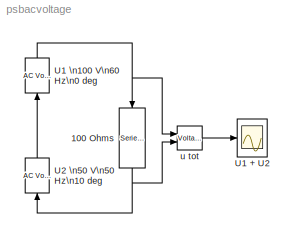
MODEL psbacvoltage
KIND model
BLOCK [Reference] 100 Ohms  REF=powerlib2/Elements/Series RLC Branch
  PSBOutputType = 1
  Ports = [1, 1]
  SourceBlock = powerlib2/Elements/Series RLC Branch
  SourceType = Series RLC Branch
  Tag = PoWeRsYsTeMbLoCk
  a = 100
  b = 0
  c = inf
  mesure = None
BLOCK [Scope] U1 + U2
  DataFormat = Array
  NumInputPorts = 1
  Ports = [1]
  TickLabels = on
  TimeRange = 0.5
  YMax = 180
  YMin = -180
BLOCK [Reference] U1 \n100 V\n60 Hz\n0 deg  REF=powerlib2/Electrical\nSources/AC Voltage Source
  A = 100
  F = 60
  P = 0
  PSBOutputType = 1
  Ports = [1, 1]
  SourceBlock = powerlib2/Electrical\nSources/AC Voltage Source
  SourceType = AC Voltage Source
  Tag = PoWeRsYsTeMbLoCk
  mesure = None
  stime = 0
BLOCK [Reference] U2 \n50 V\n50 Hz\n10 deg  REF=powerlib2/Electrical\nSources/AC Voltage Source
  A = 50
  F = 50
  P = 10
  PSBOutputType = 1
  Ports = [1, 1]
  SourceBlock = powerlib2/Electrical\nSources/AC Voltage Source
  SourceType = AC Voltage Source
  Tag = PoWeRsYsTeMbLoCk
  mesure = None
  stime = 0
BLOCK [Reference] u tot  REF=powerlib2/Measurements/Voltage Measurement
  PSBOutputType = 0
  PSBequivalent = 1
  Ports = [2, 1]
  SourceBlock = powerlib2/Measurements/Voltage Measurement
  SourceType = Voltage Measurement
  Tag = PoWeRsYsTeMmEaSuReMeNt
NET 100 Ohms:1 -> U2 \n50 V\n50 Hz\n10 deg:1, u tot:2
NET U1 \n100 V\n60 Hz\n0 deg:1 -> 100 Ohms:1, u tot:1
LINE U2 \n50 V\n50 Hz\n10 deg:1 -> U1 \n100 V\n60 Hz\n0 deg:1
LINE u tot:1 -> U1 + U2:1
note: NET lines group one-source signal fan-out (src -> all destinations, sorted); 1:1 wires keep LINE
